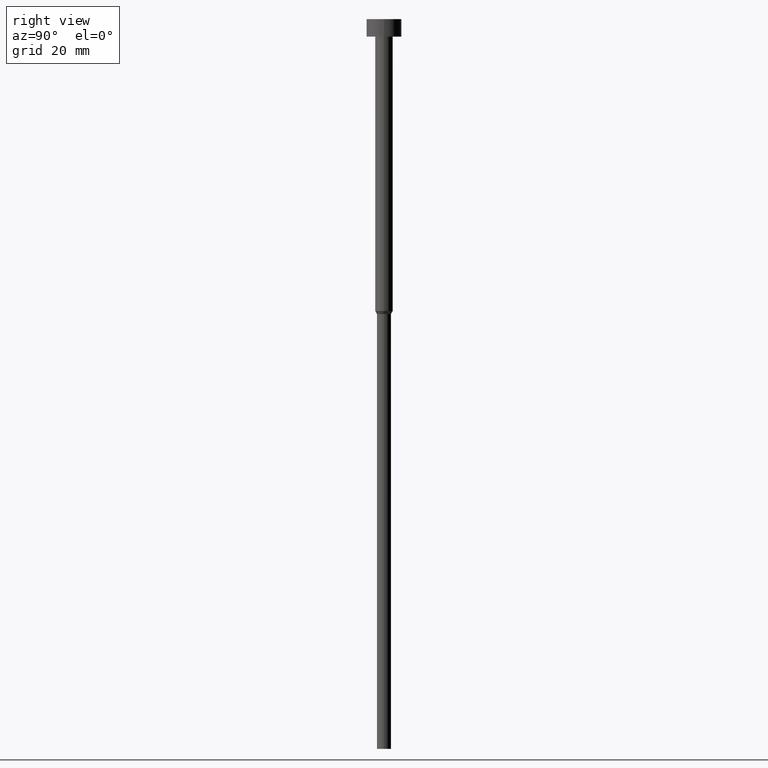
[diagram: clean part render]
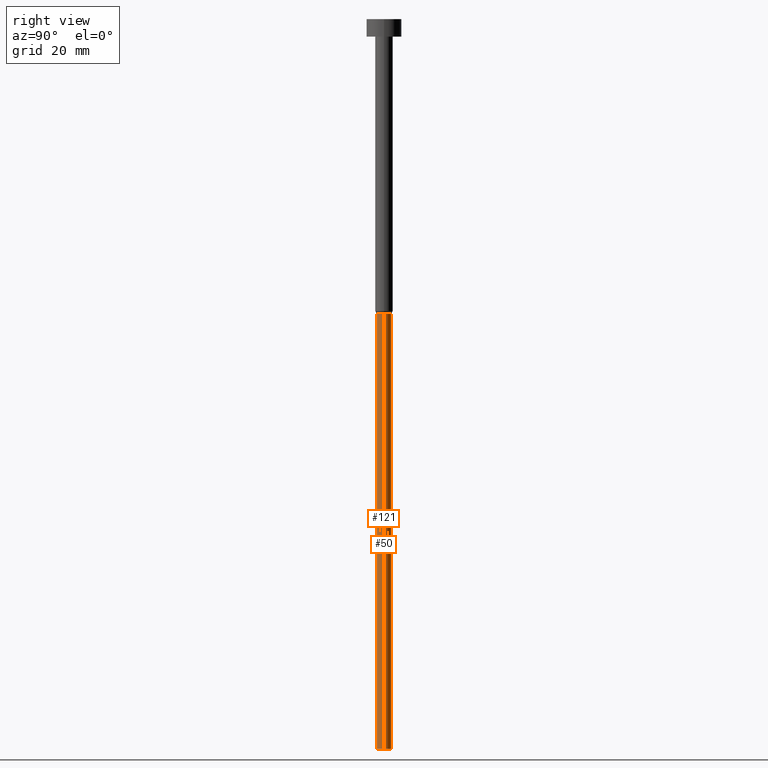
[diagram: same view with one multi-face feature highlighted, each face labeled with its STEP entity id]
A machine part, right view. The highlighted faces form ONE feature: a constant-radius fillet chain: 2 tangent blend faces with common blend radius 1.2 mm. The faces share edges in the B-rep.
Their STEP definitions:
[1] entity #121 (Cylinder):
#3 = DIRECTION ( 'NONE',  ( 1.000000000000000000, 0.000000000000000000, 0.000000000000000000 ) ) ;
#13 = VERTEX_POINT ( 'NONE', #215 ) ;
#28 = AXIS2_PLACEMENT_3D ( 'NONE', #57, #161, #32 ) ;
#29 = FACE_OUTER_BOUND ( 'NONE', #68, .T. ) ;
#32 = DIRECTION ( 'NONE',  ( 1.000000000000000000, 0.000000000000000000, 0.000000000000000000 ) ) ;
#57 = CARTESIAN_POINT ( 'NONE',  ( 0.000000000000000000, 0.000000000000000000, -125.0000000000000000 ) ) ;
#64 = CARTESIAN_POINT ( 'NONE',  ( 1.199999999999999956, 0.000000000000000000, -50.51961524227066747 ) ) ;
#68 = EDGE_LOOP ( 'NONE', ( #90, #176, #334, #266 ) ) ;
#90 = ORIENTED_EDGE ( 'NONE', *, *, #102, .F. ) ;
#95 = EDGE_CURVE ( 'NONE', #13, #298, #269, .T. ) ;
#98 = DIRECTION ( 'NONE',  ( 1.000000000000000000, 0.000000000000000000, 0.000000000000000000 ) ) ;
#102 = EDGE_CURVE ( 'NONE', #13, #117, #353, .T. ) ;
#109 = CYLINDRICAL_SURFACE ( 'NONE', #303, 1.199999999999999956 ) ;
#117 = VERTEX_POINT ( 'NONE', #304 ) ;
#121 = ADVANCED_FACE ( 'NONE', ( #29 ), #109, .T. ) ;
#128 = VECTOR ( 'NONE', #133, 1000.000000000000000 ) ;
#133 = DIRECTION ( 'NONE',  ( -0.000000000000000000, -0.000000000000000000, 1.000000000000000000 ) ) ;
#159 = CARTESIAN_POINT ( 'NONE',  ( 0.000000000000000000, 0.000000000000000000, 0.000000000000000000 ) ) ;
#161 = DIRECTION ( 'NONE',  ( -0.000000000000000000, -0.000000000000000000, 1.000000000000000000 ) ) ;
#164 = VECTOR ( 'NONE', #332, 1000.000000000000000 ) ;
#176 = ORIENTED_EDGE ( 'NONE', *, *, #95, .T. ) ;
#201 = LINE ( 'NONE', #288, #164 ) ;
#215 = CARTESIAN_POINT ( 'NONE',  ( -1.199999999999999956, 1.469576158976823553E-16, -125.0000000000000000 ) ) ;
#223 = CARTESIAN_POINT ( 'NONE',  ( -1.199999999999999956, 1.469576158976823553E-16, 0.000000000000000000 ) ) ;
#226 = CARTESIAN_POINT ( 'NONE',  ( 1.199999999999999956, 0.000000000000000000, -125.0000000000000000 ) ) ;
#227 = CIRCLE ( 'NONE', #328, 1.199999999999999956 ) ;
#266 = ORIENTED_EDGE ( 'NONE', *, *, #272, .F. ) ;
#267 = CARTESIAN_POINT ( 'NONE',  ( 0.000000000000000000, 0.000000000000000000, -50.51961524227066747 ) ) ;
#269 = CIRCLE ( 'NONE', #28, 1.199999999999999956 ) ;
#272 = EDGE_CURVE ( 'NONE', #117, #338, #227, .T. ) ;
#288 = CARTESIAN_POINT ( 'NONE',  ( 1.199999999999999956, 0.000000000000000000, 0.000000000000000000 ) ) ;
#298 = VERTEX_POINT ( 'NONE', #226 ) ;
#303 = AXIS2_PLACEMENT_3D ( 'NONE', #159, #324, #3 ) ;
#304 = CARTESIAN_POINT ( 'NONE',  ( -1.199999999999999956, 1.469576158976823553E-16, -50.51961524227066747 ) ) ;
#324 = DIRECTION ( 'NONE',  ( -0.000000000000000000, -0.000000000000000000, 1.000000000000000000 ) ) ;
#325 = EDGE_CURVE ( 'NONE', #298, #338, #201, .T. ) ;
#328 = AXIS2_PLACEMENT_3D ( 'NONE', #267, #343, #98 ) ;
#332 = DIRECTION ( 'NONE',  ( -0.000000000000000000, -0.000000000000000000, 1.000000000000000000 ) ) ;
#334 = ORIENTED_EDGE ( 'NONE', *, *, #325, .T. ) ;
#338 = VERTEX_POINT ( 'NONE', #64 ) ;
#343 = DIRECTION ( 'NONE',  ( -0.000000000000000000, -0.000000000000000000, 1.000000000000000000 ) ) ;
#353 = LINE ( 'NONE', #223, #128 ) ;
[2] entity #50 (Cylinder):
#2 = EDGE_CURVE ( 'NONE', #298, #13, #168, .T. ) ;
#13 = VERTEX_POINT ( 'NONE', #215 ) ;
#16 = DIRECTION ( 'NONE',  ( 1.000000000000000000, 0.000000000000000000, 0.000000000000000000 ) ) ;
#50 = ADVANCED_FACE ( 'NONE', ( #320 ), #154, .T. ) ;
#64 = CARTESIAN_POINT ( 'NONE',  ( 1.199999999999999956, 0.000000000000000000, -50.51961524227066747 ) ) ;
#97 = ORIENTED_EDGE ( 'NONE', *, *, #162, .F. ) ;
#102 = EDGE_CURVE ( 'NONE', #13, #117, #353, .T. ) ;
#104 = AXIS2_PLACEMENT_3D ( 'NONE', #306, #220, #185 ) ;
#108 = CARTESIAN_POINT ( 'NONE',  ( 0.000000000000000000, 0.000000000000000000, 0.000000000000000000 ) ) ;
#117 = VERTEX_POINT ( 'NONE', #304 ) ;
#128 = VECTOR ( 'NONE', #133, 1000.000000000000000 ) ;
#133 = DIRECTION ( 'NONE',  ( -0.000000000000000000, -0.000000000000000000, 1.000000000000000000 ) ) ;
#143 = CARTESIAN_POINT ( 'NONE',  ( 0.000000000000000000, 0.000000000000000000, -125.0000000000000000 ) ) ;
#154 = CYLINDRICAL_SURFACE ( 'NONE', #157, 1.199999999999999956 ) ;
#157 = AXIS2_PLACEMENT_3D ( 'NONE', #108, #276, #252 ) ;
#162 = EDGE_CURVE ( 'NONE', #338, #117, #263, .T. ) ;
#164 = VECTOR ( 'NONE', #332, 1000.000000000000000 ) ;
#168 = CIRCLE ( 'NONE', #197, 1.199999999999999956 ) ;
#185 = DIRECTION ( 'NONE',  ( 1.000000000000000000, 0.000000000000000000, 0.000000000000000000 ) ) ;
#197 = AXIS2_PLACEMENT_3D ( 'NONE', #143, #265, #16 ) ;
#201 = LINE ( 'NONE', #288, #164 ) ;
#215 = CARTESIAN_POINT ( 'NONE',  ( -1.199999999999999956, 1.469576158976823553E-16, -125.0000000000000000 ) ) ;
#220 = DIRECTION ( 'NONE',  ( -0.000000000000000000, -0.000000000000000000, 1.000000000000000000 ) ) ;
#223 = CARTESIAN_POINT ( 'NONE',  ( -1.199999999999999956, 1.469576158976823553E-16, 0.000000000000000000 ) ) ;
#226 = CARTESIAN_POINT ( 'NONE',  ( 1.199999999999999956, 0.000000000000000000, -125.0000000000000000 ) ) ;
#236 = ORIENTED_EDGE ( 'NONE', *, *, #2, .T. ) ;
#241 = ORIENTED_EDGE ( 'NONE', *, *, #325, .F. ) ;
#252 = DIRECTION ( 'NONE',  ( 1.000000000000000000, 0.000000000000000000, 0.000000000000000000 ) ) ;
#263 = CIRCLE ( 'NONE', #104, 1.199999999999999956 ) ;
#265 = DIRECTION ( 'NONE',  ( -0.000000000000000000, -0.000000000000000000, 1.000000000000000000 ) ) ;
#276 = DIRECTION ( 'NONE',  ( -0.000000000000000000, -0.000000000000000000, 1.000000000000000000 ) ) ;
#288 = CARTESIAN_POINT ( 'NONE',  ( 1.199999999999999956, 0.000000000000000000, 0.000000000000000000 ) ) ;
#298 = VERTEX_POINT ( 'NONE', #226 ) ;
#304 = CARTESIAN_POINT ( 'NONE',  ( -1.199999999999999956, 1.469576158976823553E-16, -50.51961524227066747 ) ) ;
#306 = CARTESIAN_POINT ( 'NONE',  ( 0.000000000000000000, 0.000000000000000000, -50.51961524227066747 ) ) ;
#320 = FACE_OUTER_BOUND ( 'NONE', #333, .T. ) ;
#325 = EDGE_CURVE ( 'NONE', #298, #338, #201, .T. ) ;
#332 = DIRECTION ( 'NONE',  ( -0.000000000000000000, -0.000000000000000000, 1.000000000000000000 ) ) ;
#333 = EDGE_LOOP ( 'NONE', ( #236, #335, #97, #241 ) ) ;
#335 = ORIENTED_EDGE ( 'NONE', *, *, #102, .T. ) ;
#338 = VERTEX_POINT ( 'NONE', #64 ) ;
#353 = LINE ( 'NONE', #223, #128 ) ;